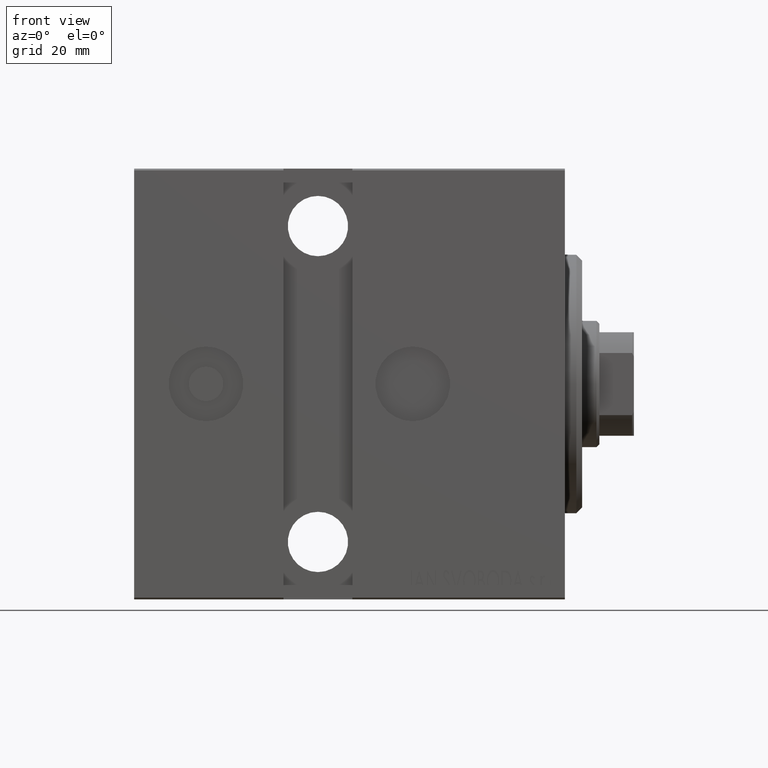
[diagram: clean part render]
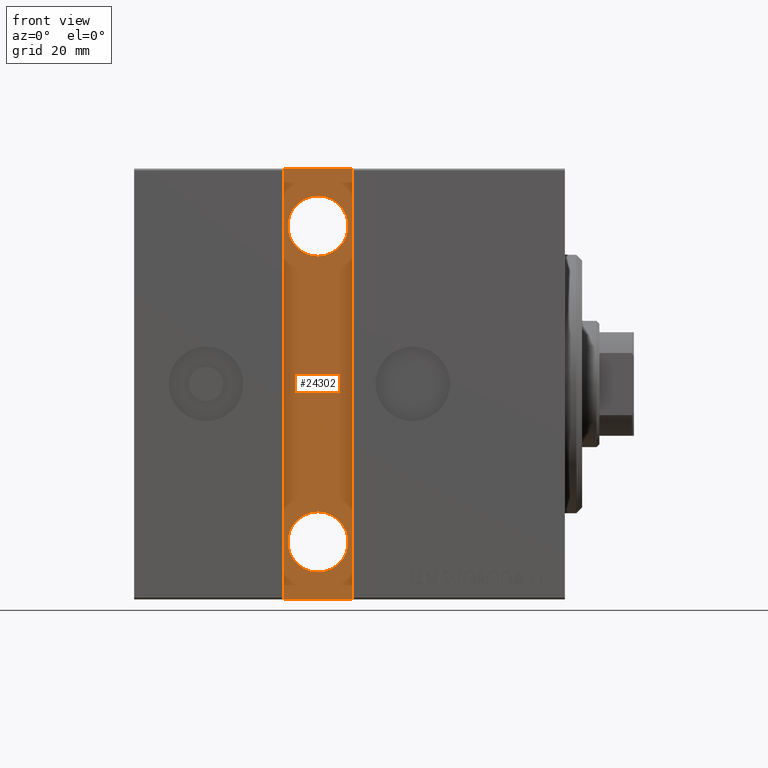
[diagram: same view with one face highlighted and labeled with its STEP entity id]
A machine part, front view. The second image highlights one B-rep face of the part: STEP entity #24302.
In plain terms, the highlighted planar face has unit normal (0, 1, 0).
Its self-contained STEP definition (entity closure, byte-faithful):
#144 = CARTESIAN_POINT ( 'NONE',  ( 48.99999999999999289, 24.50000000000000000, -37.50000000000000711 ) ) ;
#220 = LINE ( 'NONE', #17173, #24990 ) ;
#1119 = EDGE_CURVE ( 'NONE', #34115, #3337, #32501, .T. ) ;
#1224 = LINE ( 'NONE', #5297, #16660 ) ;
#2751 = CARTESIAN_POINT ( 'NONE',  ( 43.00000000000001421, 24.50000000000000000, 32.74999999999999289 ) ) ;
#3337 = VERTEX_POINT ( 'NONE', #27285 ) ;
#3348 = EDGE_CURVE ( 'NONE', #10783, #24641, #220, .T. ) ;
#3922 = DIRECTION ( 'NONE',  ( 0.000000000000000000, -1.000000000000000000, 0.000000000000000000 ) ) ;
#4858 = ORIENTED_EDGE ( 'NONE', *, *, #11549, .T. ) ;
#4903 = AXIS2_PLACEMENT_3D ( 'NONE', #41255, #18017, #11800 ) ;
#5297 = CARTESIAN_POINT ( 'NONE',  ( 37.00000000000000000, 24.50000000000000000, -37.50000000000000711 ) ) ;
#5586 = DIRECTION ( 'NONE',  ( 0.000000000000000000, -1.000000000000000000, 0.000000000000000000 ) ) ;
#6370 = CARTESIAN_POINT ( 'NONE',  ( 49.00000000000000000, 24.50000000000000000, 37.49999999999993605 ) ) ;
#6476 = EDGE_CURVE ( 'NONE', #32693, #20508, #8739, .T. ) ;
#6999 = VERTEX_POINT ( 'NONE', #31274 ) ;
#7121 = EDGE_LOOP ( 'NONE', ( #30464, #8112, #41274, #4858 ) ) ;
#8112 = ORIENTED_EDGE ( 'NONE', *, *, #3348, .T. ) ;
#8739 = CIRCLE ( 'NONE', #23142, 5.249999999999997335 ) ;
#10783 = VERTEX_POINT ( 'NONE', #17163 ) ;
#10993 = VERTEX_POINT ( 'NONE', #25951 ) ;
#11303 = EDGE_CURVE ( 'NONE', #24641, #10993, #24232, .T. ) ;
#11380 = DIRECTION ( 'NONE',  ( 0.000000000000000000, -1.000000000000000000, 0.000000000000000000 ) ) ;
#11549 = EDGE_CURVE ( 'NONE', #10993, #6999, #16033, .T. ) ;
#11800 = DIRECTION ( 'NONE',  ( 0.000000000000000000, 0.000000000000000000, -1.000000000000000000 ) ) ;
#12220 = DIRECTION ( 'NONE',  ( 0.000000000000000000, -0.000000000000000000, -1.000000000000000000 ) ) ;
#13960 = AXIS2_PLACEMENT_3D ( 'NONE', #35223, #14822, #21470 ) ;
#14557 = CARTESIAN_POINT ( 'NONE',  ( 48.99999999999999289, 24.50000000000000000, -37.50000000000000711 ) ) ;
#14780 = CIRCLE ( 'NONE', #38813, 5.249999999999994671 ) ;
#14822 = DIRECTION ( 'NONE',  ( 0.000000000000000000, -1.000000000000000000, 0.000000000000000000 ) ) ;
#16025 = ORIENTED_EDGE ( 'NONE', *, *, #1119, .T. ) ;
#16033 = LINE ( 'NONE', #144, #17760 ) ;
#16660 = VECTOR ( 'NONE', #17538, 1000.000000000000000 ) ;
#17163 = CARTESIAN_POINT ( 'NONE',  ( 37.00000000000001421, 24.50000000000000000, 37.49999999999993605 ) ) ;
#17173 = CARTESIAN_POINT ( 'NONE',  ( 49.00000000000000000, 24.50000000000000000, 37.49999999999993605 ) ) ;
#17538 = DIRECTION ( 'NONE',  ( 1.850371707708595795E-16, 0.000000000000000000, 1.000000000000000000 ) ) ;
#17760 = VECTOR ( 'NONE', #19895, 1000.000000000000000 ) ;
#18017 = DIRECTION ( 'NONE',  ( 0.000000000000000000, -1.000000000000000000, 0.000000000000000000 ) ) ;
#18661 = DIRECTION ( 'NONE',  ( 0.000000000000000000, 0.000000000000000000, -1.000000000000000000 ) ) ;
#19895 = DIRECTION ( 'NONE',  ( -1.000000000000000000, 0.000000000000000000, 0.000000000000000000 ) ) ;
#20508 = VERTEX_POINT ( 'NONE', #2751 ) ;
#20789 = DIRECTION ( 'NONE',  ( -9.251858538542978977E-17, -0.000000000000000000, -1.000000000000000000 ) ) ;
#21402 = EDGE_CURVE ( 'NONE', #20508, #32693, #22723, .T. ) ;
#21470 = DIRECTION ( 'NONE',  ( 0.000000000000000000, 0.000000000000000000, -1.000000000000000000 ) ) ;
#21881 = CARTESIAN_POINT ( 'NONE',  ( 43.00000000000001421, 24.50000000000000000, 27.50000000000000000 ) ) ;
#22723 = CIRCLE ( 'NONE', #4903, 5.249999999999997335 ) ;
#23142 = AXIS2_PLACEMENT_3D ( 'NONE', #21881, #5586, #18661 ) ;
#23947 = CARTESIAN_POINT ( 'NONE',  ( 43.00000000000001421, 24.50000000000000000, -32.74999999999999289 ) ) ;
#24232 = LINE ( 'NONE', #14557, #42478 ) ;
#24302 = ADVANCED_FACE ( 'NONE', ( #41048, #38235, #28134 ), #41678, .F. ) ;
#24641 = VERTEX_POINT ( 'NONE', #6370 ) ;
#24990 = VECTOR ( 'NONE', #27078, 1000.000000000000000 ) ;
#25951 = CARTESIAN_POINT ( 'NONE',  ( 49.00000000000000000, 24.50000000000000355, -37.50000000000000711 ) ) ;
#27078 = DIRECTION ( 'NONE',  ( 1.000000000000000000, -0.000000000000000000, -0.000000000000000000 ) ) ;
#27285 = CARTESIAN_POINT ( 'NONE',  ( 43.00000000000001421, 24.50000000000000000, -22.25000000000000355 ) ) ;
#27499 = EDGE_LOOP ( 'NONE', ( #42152, #16025 ) ) ;
#27510 = EDGE_LOOP ( 'NONE', ( #34644, #31922 ) ) ;
#28134 = FACE_OUTER_BOUND ( 'NONE', #7121, .T. ) ;
#28971 = AXIS2_PLACEMENT_3D ( 'NONE', #31983, #11380, #12220 ) ;
#30464 = ORIENTED_EDGE ( 'NONE', *, *, #33015, .T. ) ;
#31274 = CARTESIAN_POINT ( 'NONE',  ( 37.00000000000000000, 24.50000000000000000, -37.50000000000000711 ) ) ;
#31922 = ORIENTED_EDGE ( 'NONE', *, *, #6476, .T. ) ;
#31983 = CARTESIAN_POINT ( 'NONE',  ( 0.000000000000000000, 24.50000000000000000, 0.000000000000000000 ) ) ;
#32501 = CIRCLE ( 'NONE', #13960, 5.249999999999994671 ) ;
#32693 = VERTEX_POINT ( 'NONE', #38223 ) ;
#33015 = EDGE_CURVE ( 'NONE', #6999, #10783, #1224, .T. ) ;
#34115 = VERTEX_POINT ( 'NONE', #23947 ) ;
#34644 = ORIENTED_EDGE ( 'NONE', *, *, #21402, .T. ) ;
#35223 = CARTESIAN_POINT ( 'NONE',  ( 43.00000000000001421, 24.50000000000000000, -27.50000000000000000 ) ) ;
#36786 = CARTESIAN_POINT ( 'NONE',  ( 43.00000000000001421, 24.50000000000000000, -27.50000000000000000 ) ) ;
#36994 = DIRECTION ( 'NONE',  ( 0.000000000000000000, 0.000000000000000000, -1.000000000000000000 ) ) ;
#38223 = CARTESIAN_POINT ( 'NONE',  ( 43.00000000000001421, 24.50000000000000000, 22.25000000000000355 ) ) ;
#38235 = FACE_BOUND ( 'NONE', #27499, .T. ) ;
#38813 = AXIS2_PLACEMENT_3D ( 'NONE', #36786, #3922, #36994 ) ;
#41048 = FACE_BOUND ( 'NONE', #27510, .T. ) ;
#41255 = CARTESIAN_POINT ( 'NONE',  ( 43.00000000000001421, 24.50000000000000000, 27.50000000000000000 ) ) ;
#41274 = ORIENTED_EDGE ( 'NONE', *, *, #11303, .T. ) ;
#41540 = EDGE_CURVE ( 'NONE', #3337, #34115, #14780, .T. ) ;
#41678 = PLANE ( 'NONE',  #28971 ) ;
#42152 = ORIENTED_EDGE ( 'NONE', *, *, #41540, .T. ) ;
#42478 = VECTOR ( 'NONE', #20789, 1000.000000000000000 ) ;